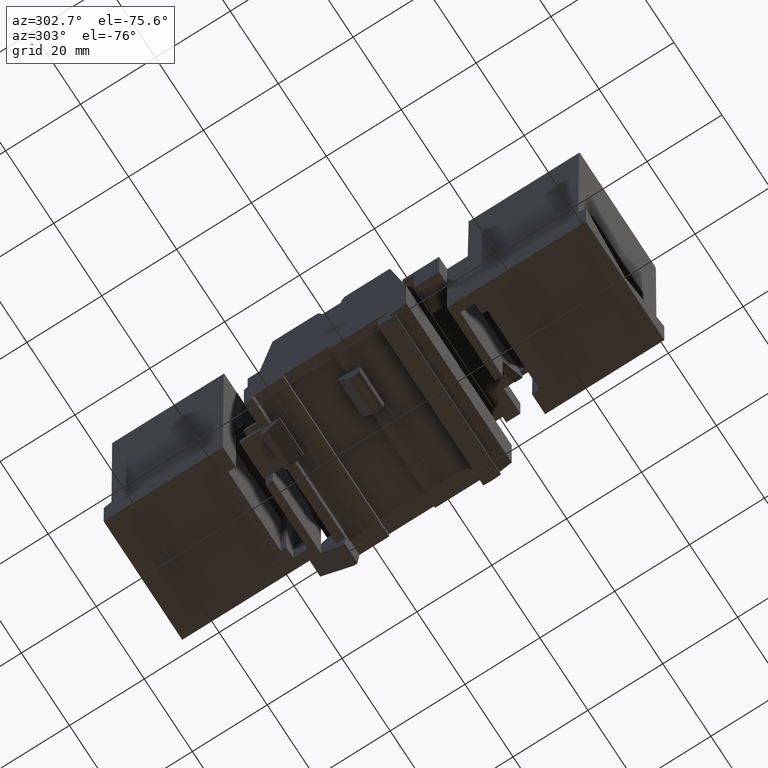
[diagram: clean part render]
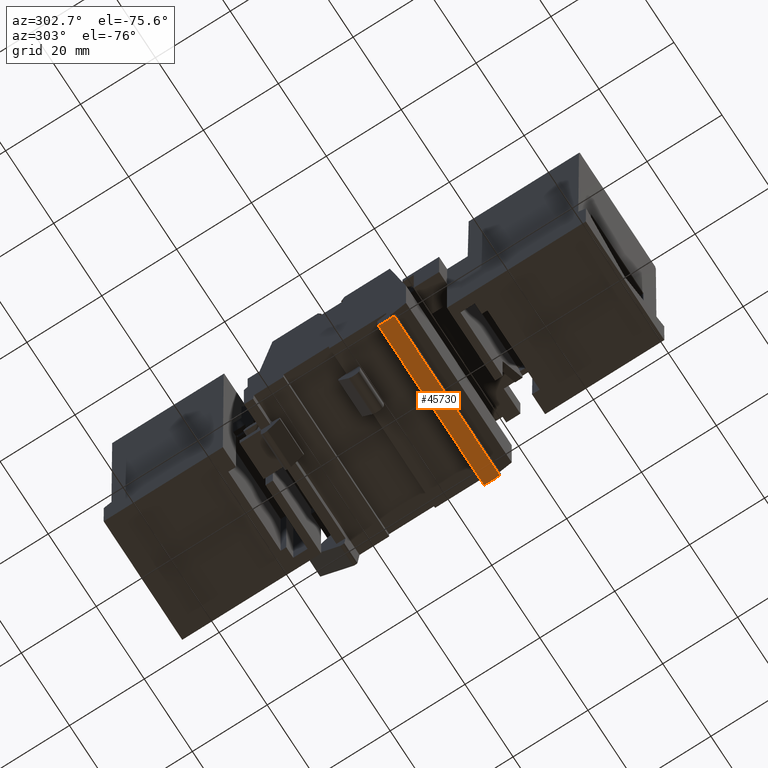
[diagram: same view with one face highlighted and labeled with its STEP entity id]
A machine part, auxiliary view. The second image highlights one B-rep face of the part: STEP entity #45730.
In plain terms, the highlighted cylindrical surface (edge-blend (fillet) strip) has radius 7.2 mm, axis along (-1, 0, 0).
Its self-contained STEP definition (entity closure, byte-faithful):
#770=CARTESIAN_POINT('',(-135.366346237574,395.582194369561,-20.));
#780=VERTEX_POINT('',#770);
#810=CARTESIAN_POINT('',(-133.376946844305,402.501897401777,-20.));
#820=DIRECTION('',(0.,0.,1.));
#830=DIRECTION('',(1.,0.,0.));
#840=AXIS2_PLACEMENT_3D('',#810,#820,#830);
#850=CIRCLE('',#840,7.20000000000001);
#860=CARTESIAN_POINT('',(-131.145653058753,395.656363964377,-20.));
#870=VERTEX_POINT('',#860);
#880=EDGE_CURVE('',#780,#870,#850,.T.);
#4490=CARTESIAN_POINT('',(-131.145653058753,395.656363964377,24.));
#4500=VERTEX_POINT('',#4490);
#4530=CARTESIAN_POINT('',(-133.376946844305,402.501897401777,24.));
#4540=DIRECTION('',(0.,0.,1.));
#4550=DIRECTION('',(1.,0.,0.));
#4560=AXIS2_PLACEMENT_3D('',#4530,#4540,#4550);
#4570=CIRCLE('',#4560,7.20000000000001);
#4580=CARTESIAN_POINT('',(-135.366346237574,395.582194369561,24.));
#4590=VERTEX_POINT('',#4580);
#4600=EDGE_CURVE('',#4590,#4500,#4570,.T.);
#45410=CARTESIAN_POINT('',(-131.145653058753,395.656363964377,24.));
#45420=DIRECTION('',(0.,0.,-1.));
#45430=VECTOR('',#45420,1.);
#45440=LINE('',#45410,#45430);
#45450=EDGE_CURVE('',#4500,#870,#45440,.T.);
#45570=CARTESIAN_POINT('',(-133.376946844305,402.501897401777,24.));
#45580=DIRECTION('',(0.,0.,1.));
#45590=DIRECTION('',(1.,0.,0.));
#45600=AXIS2_PLACEMENT_3D('',#45570,#45580,#45590);
#45610=CYLINDRICAL_SURFACE('',#45600,7.20000000000001);
#45620=ORIENTED_EDGE('',*,*,#4600,.F.);
#45630=ORIENTED_EDGE('',*,*,#45450,.F.);
#45640=ORIENTED_EDGE('',*,*,#880,.T.);
#45650=CARTESIAN_POINT('',(-135.366346237574,395.582194369561,24.));
#45660=DIRECTION('',(0.,0.,-1.));
#45670=VECTOR('',#45660,1.);
#45680=LINE('',#45650,#45670);
#45690=EDGE_CURVE('',#4590,#780,#45680,.T.);
#45700=ORIENTED_EDGE('',*,*,#45690,.T.);
#45710=EDGE_LOOP('',(#45700,#45640,#45630,#45620));
#45720=FACE_OUTER_BOUND('',#45710,.T.);
#45730=ADVANCED_FACE('',(#45720),#45610,.T.);